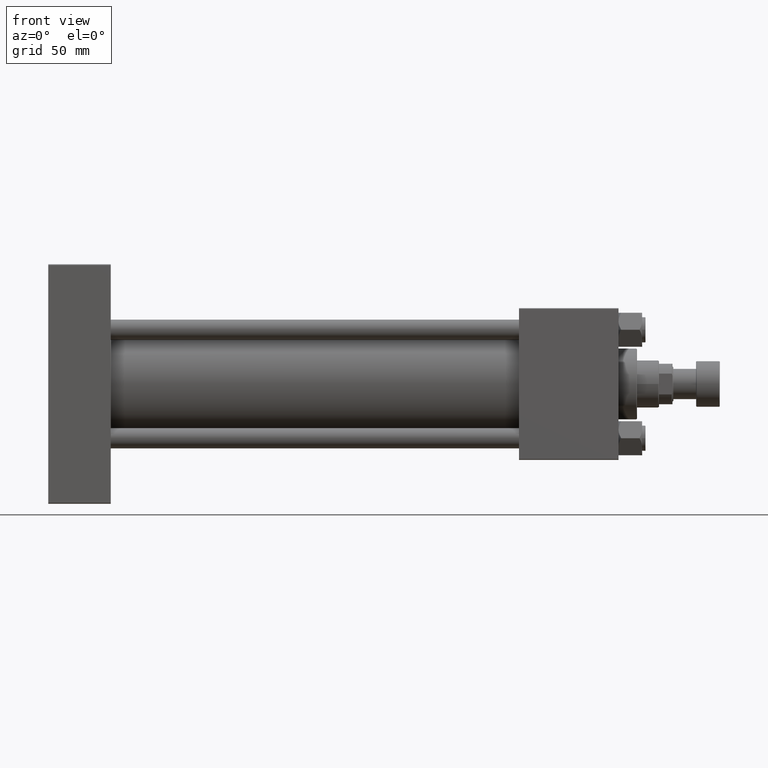
[diagram: clean part render]
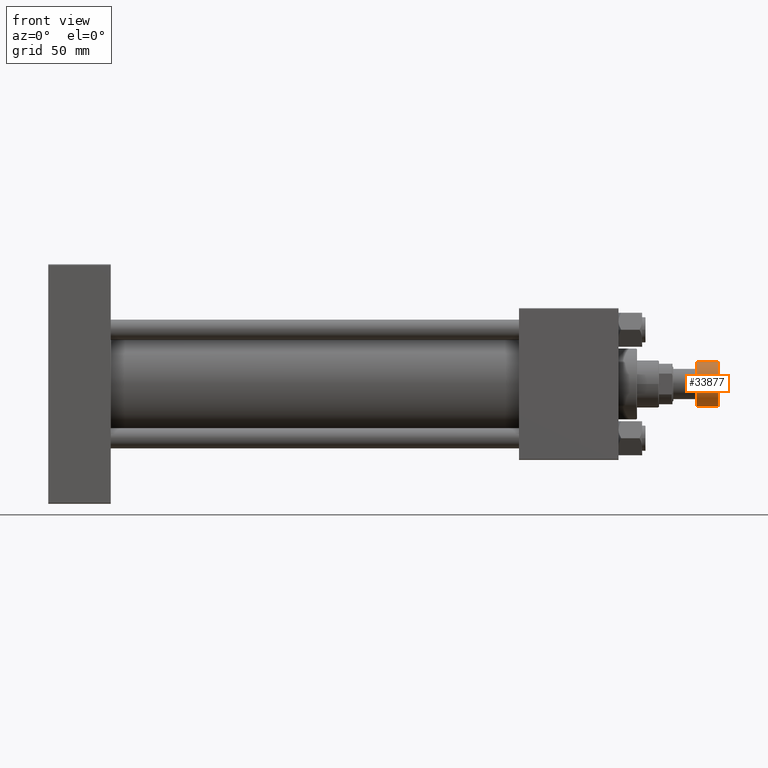
[diagram: same view with one face highlighted and labeled with its STEP entity id]
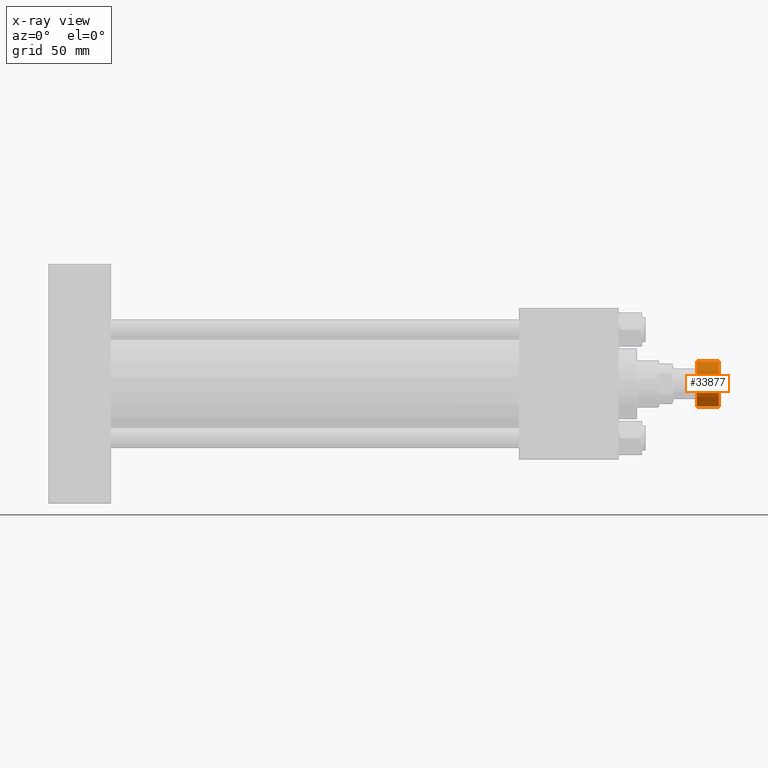
[diagram: x-ray of the same camera — body ghosted, the highlighted face saturated]
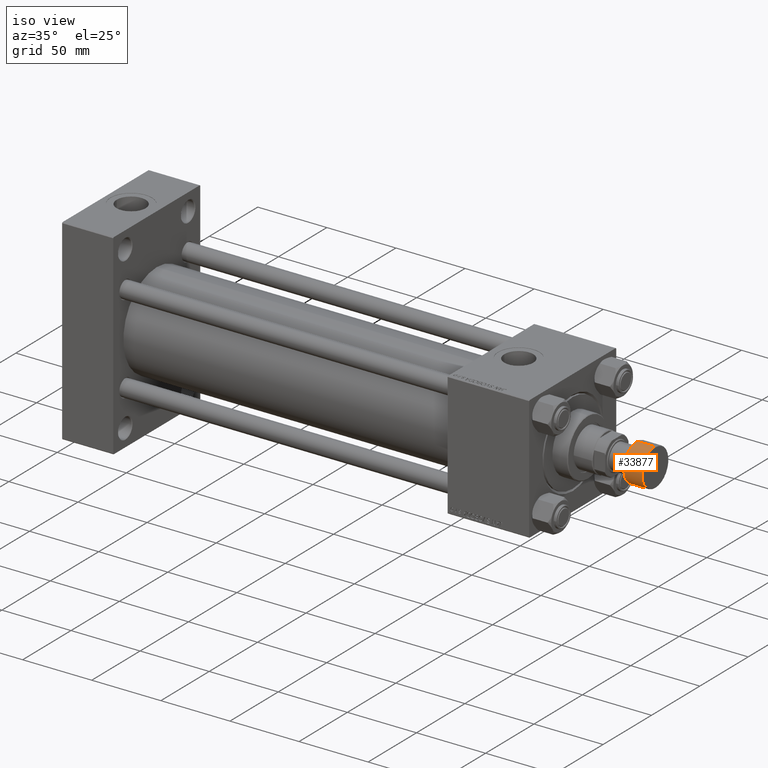
[diagram: same view with one face highlighted and labeled with its STEP entity id]
A machine part, front view. The second image highlights one B-rep face of the part: STEP entity #33877.
The next image is the same camera in x-ray: the body ghosted, the highlighted face saturated — about 0% of this face is hidden behind the body in this view.
A second angle (iso view) of the same face is appended — the face is thin or edge-on in the first view.
In plain terms, the highlighted cylindrical surface (edge-blend (fillet) strip) has radius 13.5 mm, axis along (1, 0, 0).
Its self-contained STEP definition (entity closure, byte-faithful):
#3075 = EDGE_CURVE ( 'NONE', #19450, #42540, #7894, .T. ) ;
#5410 = CYLINDRICAL_SURFACE ( 'NONE', #26742, 13.50000000000000000 ) ;
#5938 = DIRECTION ( 'NONE',  ( 0.000000000000000000, 0.000000000000000000, 1.000000000000000000 ) ) ;
#7048 = VERTEX_POINT ( 'NONE', #31193 ) ;
#7894 = LINE ( 'NONE', #15869, #52086 ) ;
#11167 = CIRCLE ( 'NONE', #40846, 13.50000000000000000 ) ;
#12623 = CARTESIAN_POINT ( 'NONE',  ( 13.50000000000000000, 0.000000000000000000, -14.00000000000000000 ) ) ;
#12723 = CARTESIAN_POINT ( 'NONE',  ( -13.50000000000000000, 1.653273178848926867E-15, -13.50000000000000000 ) ) ;
#13435 = DIRECTION ( 'NONE',  ( -0.000000000000000000, -0.000000000000000000, -1.000000000000000000 ) ) ;
#14015 = VERTEX_POINT ( 'NONE', #19008 ) ;
#15677 = EDGE_CURVE ( 'NONE', #19450, #14015, #18443, .T. ) ;
#15869 = CARTESIAN_POINT ( 'NONE',  ( -13.50000000000000000, 1.653273178848926867E-15, -14.00000000000000000 ) ) ;
#17213 = DIRECTION ( 'NONE',  ( 1.000000000000000000, 0.000000000000000000, 0.000000000000000000 ) ) ;
#18443 = CIRCLE ( 'NONE', #29472, 13.50000000000000000 ) ;
#19008 = CARTESIAN_POINT ( 'NONE',  ( 13.50000000000000000, 0.000000000000000000, -13.50000000000000000 ) ) ;
#19450 = VERTEX_POINT ( 'NONE', #12723 ) ;
#21464 = DIRECTION ( 'NONE',  ( 0.000000000000000000, 0.000000000000000000, 1.000000000000000000 ) ) ;
#21610 = FACE_OUTER_BOUND ( 'NONE', #24469, .T. ) ;
#24469 = EDGE_LOOP ( 'NONE', ( #47605, #34397, #47403, #41072 ) ) ;
#24834 = LINE ( 'NONE', #12623, #32015 ) ;
#26742 = AXIS2_PLACEMENT_3D ( 'NONE', #42314, #5938, #37303 ) ;
#29413 = CARTESIAN_POINT ( 'NONE',  ( -13.50000000000000000, 1.653273178848926867E-15, -0.5000000000000004441 ) ) ;
#29472 = AXIS2_PLACEMENT_3D ( 'NONE', #49632, #21464, #17213 ) ;
#31193 = CARTESIAN_POINT ( 'NONE',  ( 13.50000000000000000, 0.000000000000000000, -0.5000000000000004441 ) ) ;
#32015 = VECTOR ( 'NONE', #37311, 1000.000000000000000 ) ;
#33877 = ADVANCED_FACE ( 'NONE', ( #21610 ), #5410, .T. ) ;
#34397 = ORIENTED_EDGE ( 'NONE', *, *, #15677, .T. ) ;
#37303 = DIRECTION ( 'NONE',  ( 1.000000000000000000, 0.000000000000000000, 0.000000000000000000 ) ) ;
#37311 = DIRECTION ( 'NONE',  ( 0.000000000000000000, 0.000000000000000000, 1.000000000000000000 ) ) ;
#38275 = EDGE_CURVE ( 'NONE', #14015, #7048, #24834, .T. ) ;
#38391 = DIRECTION ( 'NONE',  ( 1.000000000000000000, 0.000000000000000000, 0.000000000000000000 ) ) ;
#40298 = DIRECTION ( 'NONE',  ( 0.000000000000000000, 0.000000000000000000, 1.000000000000000000 ) ) ;
#40846 = AXIS2_PLACEMENT_3D ( 'NONE', #46355, #13435, #38391 ) ;
#41072 = ORIENTED_EDGE ( 'NONE', *, *, #52302, .T. ) ;
#42314 = CARTESIAN_POINT ( 'NONE',  ( 0.000000000000000000, 0.000000000000000000, -14.00000000000000000 ) ) ;
#42540 = VERTEX_POINT ( 'NONE', #29413 ) ;
#46355 = CARTESIAN_POINT ( 'NONE',  ( 0.000000000000000000, 0.000000000000000000, -0.5000000000000004441 ) ) ;
#47403 = ORIENTED_EDGE ( 'NONE', *, *, #38275, .T. ) ;
#47605 = ORIENTED_EDGE ( 'NONE', *, *, #3075, .F. ) ;
#49632 = CARTESIAN_POINT ( 'NONE',  ( 0.000000000000000000, 0.000000000000000000, -13.50000000000000000 ) ) ;
#52086 = VECTOR ( 'NONE', #40298, 1000.000000000000000 ) ;
#52302 = EDGE_CURVE ( 'NONE', #7048, #42540, #11167, .T. ) ;